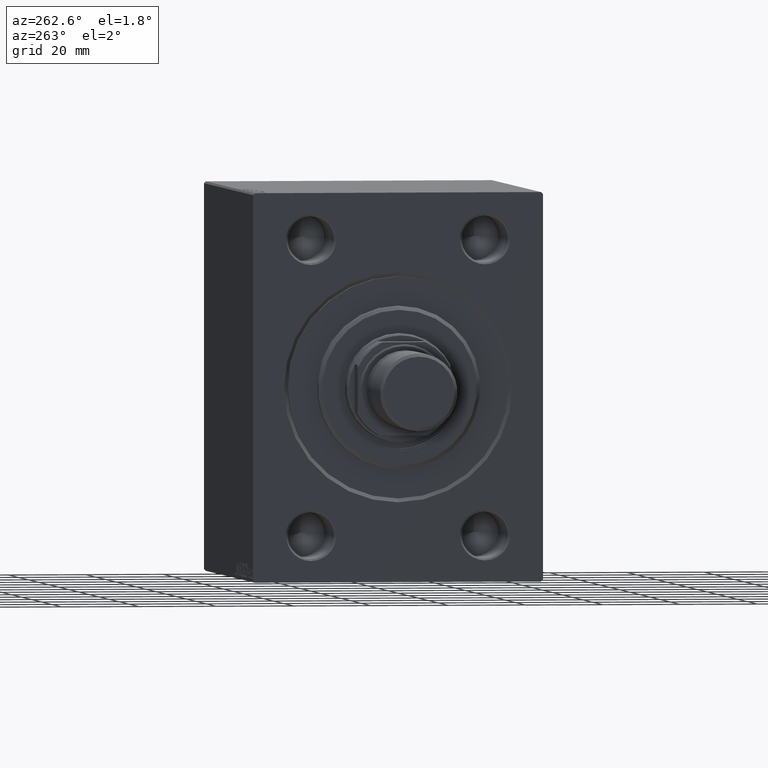
[diagram: clean part render]
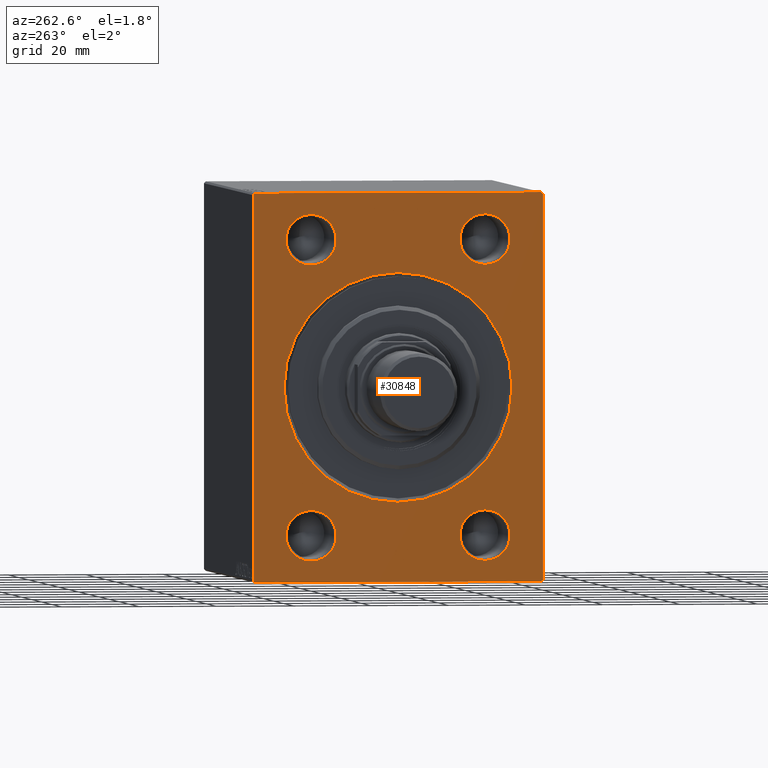
[diagram: same view with one face highlighted and labeled with its STEP entity id]
A machine part, auxiliary view. The second image highlights one B-rep face of the part: STEP entity #30848.
In plain terms, the highlighted planar face has unit normal (1, 0, 0).
Its self-contained STEP definition (entity closure, byte-faithful):
#16 = ORIENTED_EDGE ( 'NONE', *, *, #1381, .F. ) ;
#206 = CARTESIAN_POINT ( 'NONE',  ( 0.000000000000000000, 22.50000000000000000, -44.50000000000000000 ) ) ;
#310 = DIRECTION ( 'NONE',  ( 0.000000000000000000, 0.000000000000000000, -1.000000000000000000 ) ) ;
#365 = AXIS2_PLACEMENT_3D ( 'NONE', #28524, #42834, #18071 ) ;
#429 = CIRCLE ( 'NONE', #12071, 29.50000000000001421 ) ;
#995 = DIRECTION ( 'NONE',  ( 1.000000000000000000, 0.000000000000000000, 0.000000000000000000 ) ) ;
#1325 = CARTESIAN_POINT ( 'NONE',  ( 0.000000000000000000, -22.50000000000000000, 37.99999999999999289 ) ) ;
#1381 = EDGE_CURVE ( 'NONE', #40323, #40503, #18091, .T. ) ;
#1740 = CIRCLE ( 'NONE', #41622, 6.499999999999992006 ) ;
#1743 = EDGE_CURVE ( 'NONE', #3014, #40503, #4409, .T. ) ;
#1817 = EDGE_LOOP ( 'NONE', ( #3056, #9372 ) ) ;
#1905 = DIRECTION ( 'NONE',  ( 1.000000000000000000, 0.000000000000000000, 0.000000000000000000 ) ) ;
#1938 = CIRCLE ( 'NONE', #40417, 29.50000000000001421 ) ;
#2356 = DIRECTION ( 'NONE',  ( 1.000000000000000000, 0.000000000000000000, 0.000000000000000000 ) ) ;
#2427 = EDGE_CURVE ( 'NONE', #41688, #31295, #16477, .T. ) ;
#2694 = DIRECTION ( 'NONE',  ( 1.000000000000000000, 0.000000000000000000, 0.000000000000000000 ) ) ;
#3014 = VERTEX_POINT ( 'NONE', #19336 ) ;
#3056 = ORIENTED_EDGE ( 'NONE', *, *, #44747, .T. ) ;
#3118 = AXIS2_PLACEMENT_3D ( 'NONE', #33492, #2356, #16028 ) ;
#3255 = CARTESIAN_POINT ( 'NONE',  ( 0.000000000000000000, 37.50000000000000711, -49.50000000000001421 ) ) ;
#3712 = VECTOR ( 'NONE', #37392, 1000.000000000000000 ) ;
#3772 = DIRECTION ( 'NONE',  ( -0.000000000000000000, 0.7071067811865525687, 0.7071067811865425767 ) ) ;
#4409 = LINE ( 'NONE', #8054, #37085 ) ;
#4440 = VERTEX_POINT ( 'NONE', #43785 ) ;
#4688 = CARTESIAN_POINT ( 'NONE',  ( 0.000000000000000000, -37.50000000000000000, 49.99999999999998579 ) ) ;
#4728 = VECTOR ( 'NONE', #30843, 1000.000000000000000 ) ;
#5011 = ORIENTED_EDGE ( 'NONE', *, *, #26709, .T. ) ;
#5214 = CARTESIAN_POINT ( 'NONE',  ( 0.000000000000000000, 22.50000000000000000, 37.99999999999999289 ) ) ;
#5334 = DIRECTION ( 'NONE',  ( 0.000000000000000000, 0.000000000000000000, -1.000000000000000000 ) ) ;
#5906 = DIRECTION ( 'NONE',  ( 0.000000000000000000, 0.000000000000000000, -1.000000000000000000 ) ) ;
#6122 = CARTESIAN_POINT ( 'NONE',  ( 0.000000000000000000, 0.000000000000000000, 0.000000000000000000 ) ) ;
#6644 = LINE ( 'NONE', #24366, #12785 ) ;
#6708 = ORIENTED_EDGE ( 'NONE', *, *, #37175, .T. ) ;
#7867 = PLANE ( 'NONE',  #365 ) ;
#8007 = ORIENTED_EDGE ( 'NONE', *, *, #2427, .T. ) ;
#8054 = CARTESIAN_POINT ( 'NONE',  ( 0.000000000000000000, -37.00000000000000000, -50.00000000000000000 ) ) ;
#8176 = DIRECTION ( 'NONE',  ( 1.000000000000000000, 0.000000000000000000, 0.000000000000000000 ) ) ;
#8371 = EDGE_CURVE ( 'NONE', #4440, #28643, #30632, .T. ) ;
#9140 = CARTESIAN_POINT ( 'NONE',  ( 0.000000000000000000, -22.50000000000000000, 44.49999999999998579 ) ) ;
#9178 = VECTOR ( 'NONE', #3772, 999.9999999999998863 ) ;
#9331 = CARTESIAN_POINT ( 'NONE',  ( 0.000000000000000000, -22.50000000000000000, -31.50000000000001421 ) ) ;
#9372 = ORIENTED_EDGE ( 'NONE', *, *, #30388, .T. ) ;
#10800 = CIRCLE ( 'NONE', #36197, 6.499999999999992006 ) ;
#10923 = DIRECTION ( 'NONE',  ( 0.000000000000000000, 0.000000000000000000, -1.000000000000000000 ) ) ;
#11313 = VERTEX_POINT ( 'NONE', #206 ) ;
#11724 = FACE_BOUND ( 'NONE', #32094, .T. ) ;
#11787 = ORIENTED_EDGE ( 'NONE', *, *, #26848, .T. ) ;
#11789 = EDGE_LOOP ( 'NONE', ( #42143, #5011 ) ) ;
#11822 = DIRECTION ( 'NONE',  ( 1.000000000000000000, 0.000000000000000000, 0.000000000000000000 ) ) ;
#12071 = AXIS2_PLACEMENT_3D ( 'NONE', #36575, #11822, #36796 ) ;
#12072 = VERTEX_POINT ( 'NONE', #40507 ) ;
#12445 = VECTOR ( 'NONE', #32171, 1000.000000000000000 ) ;
#12785 = VECTOR ( 'NONE', #14166, 1000.000000000000000 ) ;
#12819 = AXIS2_PLACEMENT_3D ( 'NONE', #1325, #17912, #29254 ) ;
#12910 = EDGE_LOOP ( 'NONE', ( #14951, #6708 ) ) ;
#12930 = VECTOR ( 'NONE', #44949, 1000.000000000000000 ) ;
#13079 = CARTESIAN_POINT ( 'NONE',  ( 0.000000000000000000, 3.612708057484693970E-15, -29.50000000000001421 ) ) ;
#14133 = CARTESIAN_POINT ( 'NONE',  ( 0.000000000000000000, -22.50000000000000000, 31.50000000000000000 ) ) ;
#14166 = DIRECTION ( 'NONE',  ( 0.000000000000000000, -1.387778780781445676E-16, 1.000000000000000000 ) ) ;
#14363 = VERTEX_POINT ( 'NONE', #33578 ) ;
#14951 = ORIENTED_EDGE ( 'NONE', *, *, #21434, .T. ) ;
#15276 = VERTEX_POINT ( 'NONE', #31528 ) ;
#15821 = ORIENTED_EDGE ( 'NONE', *, *, #18656, .F. ) ;
#16028 = DIRECTION ( 'NONE',  ( 0.000000000000000000, 0.000000000000000000, -1.000000000000000000 ) ) ;
#16477 = LINE ( 'NONE', #3255, #3712 ) ;
#16845 = VERTEX_POINT ( 'NONE', #14133 ) ;
#16981 = CARTESIAN_POINT ( 'NONE',  ( 0.000000000000000000, -37.50000000000000000, -50.00000000000000000 ) ) ;
#17008 = LINE ( 'NONE', #30867, #12930 ) ;
#17138 = CIRCLE ( 'NONE', #12819, 6.499999999999992006 ) ;
#17654 = EDGE_LOOP ( 'NONE', ( #29770, #25153 ) ) ;
#17666 = CARTESIAN_POINT ( 'NONE',  ( 0.000000000000000000, 22.50000000000000000, 37.99999999999999289 ) ) ;
#17912 = DIRECTION ( 'NONE',  ( 1.000000000000000000, 0.000000000000000000, 0.000000000000000000 ) ) ;
#18071 = DIRECTION ( 'NONE',  ( 0.000000000000000000, 0.000000000000000000, -1.000000000000000000 ) ) ;
#18091 = LINE ( 'NONE', #4688, #12445 ) ;
#18389 = DIRECTION ( 'NONE',  ( 1.000000000000000000, 0.000000000000000000, 0.000000000000000000 ) ) ;
#18520 = EDGE_CURVE ( 'NONE', #29087, #16845, #27205, .T. ) ;
#18532 = CIRCLE ( 'NONE', #30842, 6.499999999999992006 ) ;
#18656 = EDGE_CURVE ( 'NONE', #41688, #28643, #6644, .T. ) ;
#18692 = ORIENTED_EDGE ( 'NONE', *, *, #33427, .T. ) ;
#19336 = CARTESIAN_POINT ( 'NONE',  ( 0.000000000000000000, -37.00000000000000000, -50.00000000000000000 ) ) ;
#20005 = CIRCLE ( 'NONE', #41063, 6.499999999999992006 ) ;
#20731 = EDGE_CURVE ( 'NONE', #16845, #29087, #17138, .T. ) ;
#20750 = DIRECTION ( 'NONE',  ( 1.000000000000000000, 0.000000000000000000, 0.000000000000000000 ) ) ;
#21223 = ORIENTED_EDGE ( 'NONE', *, *, #32914, .T. ) ;
#21434 = EDGE_CURVE ( 'NONE', #22100, #35316, #1938, .T. ) ;
#21484 = FACE_BOUND ( 'NONE', #11789, .T. ) ;
#21831 = ORIENTED_EDGE ( 'NONE', *, *, #8371, .T. ) ;
#22100 = VERTEX_POINT ( 'NONE', #40987 ) ;
#22431 = CARTESIAN_POINT ( 'NONE',  ( 0.000000000000000000, 37.49999999999999289, 49.50000000000002842 ) ) ;
#22869 = ORIENTED_EDGE ( 'NONE', *, *, #29536, .F. ) ;
#24366 = CARTESIAN_POINT ( 'NONE',  ( 0.000000000000000000, 37.50000000000000711, -50.00000000000000000 ) ) ;
#24796 = ORIENTED_EDGE ( 'NONE', *, *, #42885, .F. ) ;
#24946 = DIRECTION ( 'NONE',  ( 0.000000000000000000, 0.000000000000000000, -1.000000000000000000 ) ) ;
#25153 = ORIENTED_EDGE ( 'NONE', *, *, #20731, .T. ) ;
#25657 = DIRECTION ( 'NONE',  ( 0.000000000000000000, 0.000000000000000000, -1.000000000000000000 ) ) ;
#26503 = CIRCLE ( 'NONE', #33037, 6.499999999999992006 ) ;
#26709 = EDGE_CURVE ( 'NONE', #11313, #15276, #29272, .T. ) ;
#26848 = EDGE_CURVE ( 'NONE', #14363, #33942, #1740, .T. ) ;
#27060 = VECTOR ( 'NONE', #37481, 999.9999999999998863 ) ;
#27205 = CIRCLE ( 'NONE', #33046, 6.499999999999992006 ) ;
#27264 = DIRECTION ( 'NONE',  ( 1.000000000000000000, 0.000000000000000000, 0.000000000000000000 ) ) ;
#27283 = CARTESIAN_POINT ( 'NONE',  ( 0.000000000000000000, 37.00000000000001421, -50.00000000000000000 ) ) ;
#27378 = VERTEX_POINT ( 'NONE', #30154 ) ;
#28137 = CARTESIAN_POINT ( 'NONE',  ( 0.000000000000000000, -37.50000000000000000, -49.49999999999997158 ) ) ;
#28401 = EDGE_LOOP ( 'NONE', ( #16, #21223, #24796, #21831, #15821, #8007, #22869, #38311 ) ) ;
#28524 = CARTESIAN_POINT ( 'NONE',  ( 0.000000000000000000, 0.000000000000000000, 0.000000000000000000 ) ) ;
#28643 = VERTEX_POINT ( 'NONE', #22431 ) ;
#28938 = DIRECTION ( 'NONE',  ( 0.000000000000000000, 0.000000000000000000, -1.000000000000000000 ) ) ;
#28976 = FACE_BOUND ( 'NONE', #1817, .T. ) ;
#29087 = VERTEX_POINT ( 'NONE', #9140 ) ;
#29153 = CARTESIAN_POINT ( 'NONE',  ( 0.000000000000000000, 22.50000000000000000, -38.00000000000000711 ) ) ;
#29254 = DIRECTION ( 'NONE',  ( 0.000000000000000000, 0.000000000000000000, -1.000000000000000000 ) ) ;
#29272 = CIRCLE ( 'NONE', #3118, 6.499999999999992006 ) ;
#29536 = EDGE_CURVE ( 'NONE', #3014, #31295, #37688, .T. ) ;
#29770 = ORIENTED_EDGE ( 'NONE', *, *, #18520, .T. ) ;
#30154 = CARTESIAN_POINT ( 'NONE',  ( 0.000000000000000000, 22.50000000000000000, 31.50000000000000000 ) ) ;
#30388 = EDGE_CURVE ( 'NONE', #27378, #12072, #18532, .T. ) ;
#30632 = LINE ( 'NONE', #30863, #27060 ) ;
#30842 = AXIS2_PLACEMENT_3D ( 'NONE', #17666, #27264, #24946 ) ;
#30843 = DIRECTION ( 'NONE',  ( 0.000000000000000000, 1.000000000000000000, 0.000000000000000000 ) ) ;
#30848 = ADVANCED_FACE ( 'NONE', ( #39660, #11724, #38999, #28976, #21484, #35358 ), #7867, .F. ) ;
#30863 = CARTESIAN_POINT ( 'NONE',  ( 0.000000000000000000, 37.00000000000000711, 50.00000000000000711 ) ) ;
#30867 = CARTESIAN_POINT ( 'NONE',  ( 0.000000000000000000, 37.49999999999999289, 50.00000000000000711 ) ) ;
#31111 = EDGE_CURVE ( 'NONE', #15276, #11313, #26503, .T. ) ;
#31295 = VERTEX_POINT ( 'NONE', #27283 ) ;
#31528 = CARTESIAN_POINT ( 'NONE',  ( 0.000000000000000000, 22.50000000000000000, -31.50000000000001421 ) ) ;
#31804 = CARTESIAN_POINT ( 'NONE',  ( 0.000000000000000000, -22.50000000000000000, -38.00000000000000711 ) ) ;
#32094 = EDGE_LOOP ( 'NONE', ( #18692, #11787 ) ) ;
#32171 = DIRECTION ( 'NONE',  ( 0.000000000000000000, 0.000000000000000000, -1.000000000000000000 ) ) ;
#32186 = LINE ( 'NONE', #38348, #9178 ) ;
#32914 = EDGE_CURVE ( 'NONE', #40323, #37646, #32186, .T. ) ;
#33037 = AXIS2_PLACEMENT_3D ( 'NONE', #29153, #995, #28938 ) ;
#33046 = AXIS2_PLACEMENT_3D ( 'NONE', #36462, #1905, #5334 ) ;
#33427 = EDGE_CURVE ( 'NONE', #33942, #14363, #20005, .T. ) ;
#33492 = CARTESIAN_POINT ( 'NONE',  ( 0.000000000000000000, 22.50000000000000000, -38.00000000000000711 ) ) ;
#33578 = CARTESIAN_POINT ( 'NONE',  ( 0.000000000000000000, -22.50000000000000000, -44.50000000000000000 ) ) ;
#33942 = VERTEX_POINT ( 'NONE', #9331 ) ;
#34622 = CARTESIAN_POINT ( 'NONE',  ( 0.000000000000000000, -22.50000000000000000, -38.00000000000000711 ) ) ;
#35316 = VERTEX_POINT ( 'NONE', #13079 ) ;
#35358 = FACE_OUTER_BOUND ( 'NONE', #28401, .T. ) ;
#36197 = AXIS2_PLACEMENT_3D ( 'NONE', #5214, #8176, #25657 ) ;
#36462 = CARTESIAN_POINT ( 'NONE',  ( 0.000000000000000000, -22.50000000000000000, 37.99999999999999289 ) ) ;
#36575 = CARTESIAN_POINT ( 'NONE',  ( 0.000000000000000000, 0.000000000000000000, 0.000000000000000000 ) ) ;
#36796 = DIRECTION ( 'NONE',  ( 0.000000000000000000, 0.000000000000000000, -1.000000000000000000 ) ) ;
#37085 = VECTOR ( 'NONE', #42127, 1000.000000000000114 ) ;
#37175 = EDGE_CURVE ( 'NONE', #35316, #22100, #429, .T. ) ;
#37392 = DIRECTION ( 'NONE',  ( 0.000000000000000000, -0.7071067811865524577, -0.7071067811865426878 ) ) ;
#37481 = DIRECTION ( 'NONE',  ( -0.000000000000000000, 0.7071067811865525687, -0.7071067811865425767 ) ) ;
#37646 = VERTEX_POINT ( 'NONE', #44532 ) ;
#37688 = LINE ( 'NONE', #16981, #4728 ) ;
#38311 = ORIENTED_EDGE ( 'NONE', *, *, #1743, .T. ) ;
#38348 = CARTESIAN_POINT ( 'NONE',  ( 0.000000000000000000, -37.50000000000000000, 49.49999999999998579 ) ) ;
#38999 = FACE_BOUND ( 'NONE', #17654, .T. ) ;
#39660 = FACE_BOUND ( 'NONE', #12910, .T. ) ;
#40323 = VERTEX_POINT ( 'NONE', #41314 ) ;
#40417 = AXIS2_PLACEMENT_3D ( 'NONE', #6122, #2694, #5906 ) ;
#40503 = VERTEX_POINT ( 'NONE', #28137 ) ;
#40507 = CARTESIAN_POINT ( 'NONE',  ( 0.000000000000000000, 22.50000000000000000, 44.49999999999998579 ) ) ;
#40987 = CARTESIAN_POINT ( 'NONE',  ( 0.000000000000000000, 0.000000000000000000, 29.50000000000001421 ) ) ;
#41063 = AXIS2_PLACEMENT_3D ( 'NONE', #31804, #18389, #10923 ) ;
#41314 = CARTESIAN_POINT ( 'NONE',  ( 0.000000000000000000, -37.50000000000000000, 49.49999999999998579 ) ) ;
#41622 = AXIS2_PLACEMENT_3D ( 'NONE', #34622, #20750, #310 ) ;
#41688 = VERTEX_POINT ( 'NONE', #43290 ) ;
#42127 = DIRECTION ( 'NONE',  ( -0.000000000000000000, -0.7071067811865474617, 0.7071067811865474617 ) ) ;
#42143 = ORIENTED_EDGE ( 'NONE', *, *, #31111, .T. ) ;
#42834 = DIRECTION ( 'NONE',  ( 1.000000000000000000, 0.000000000000000000, 0.000000000000000000 ) ) ;
#42885 = EDGE_CURVE ( 'NONE', #4440, #37646, #17008, .T. ) ;
#43290 = CARTESIAN_POINT ( 'NONE',  ( 0.000000000000000000, 37.50000000000000711, -49.50000000000001421 ) ) ;
#43785 = CARTESIAN_POINT ( 'NONE',  ( 0.000000000000000000, 37.00000000000000711, 50.00000000000000711 ) ) ;
#44532 = CARTESIAN_POINT ( 'NONE',  ( 0.000000000000000000, -36.99999999999999289, 49.99999999999998579 ) ) ;
#44747 = EDGE_CURVE ( 'NONE', #12072, #27378, #10800, .T. ) ;
#44949 = DIRECTION ( 'NONE',  ( 0.000000000000000000, -1.000000000000000000, -2.775557561562891844E-16 ) ) ;